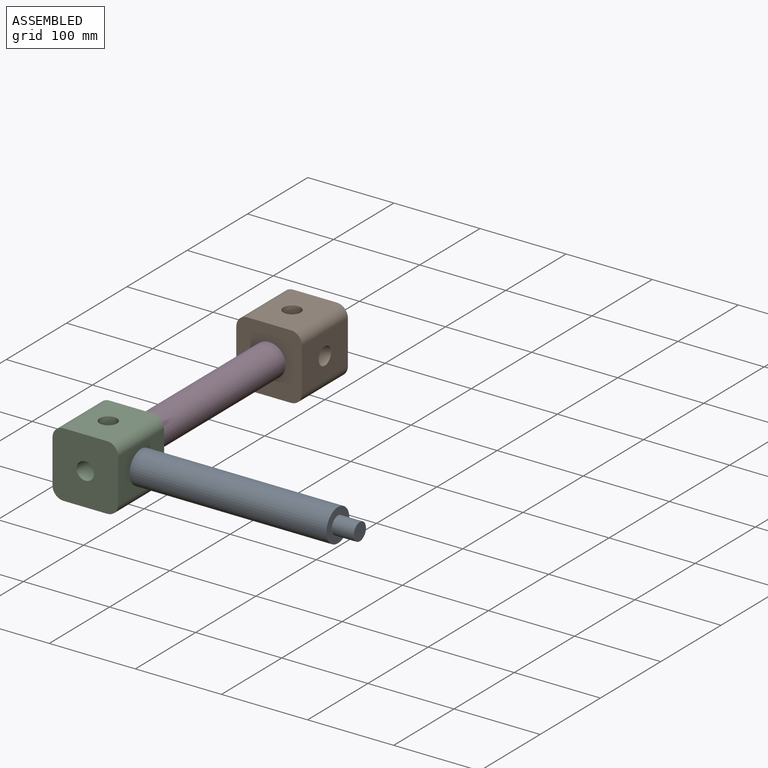
[diagram: assembled view]
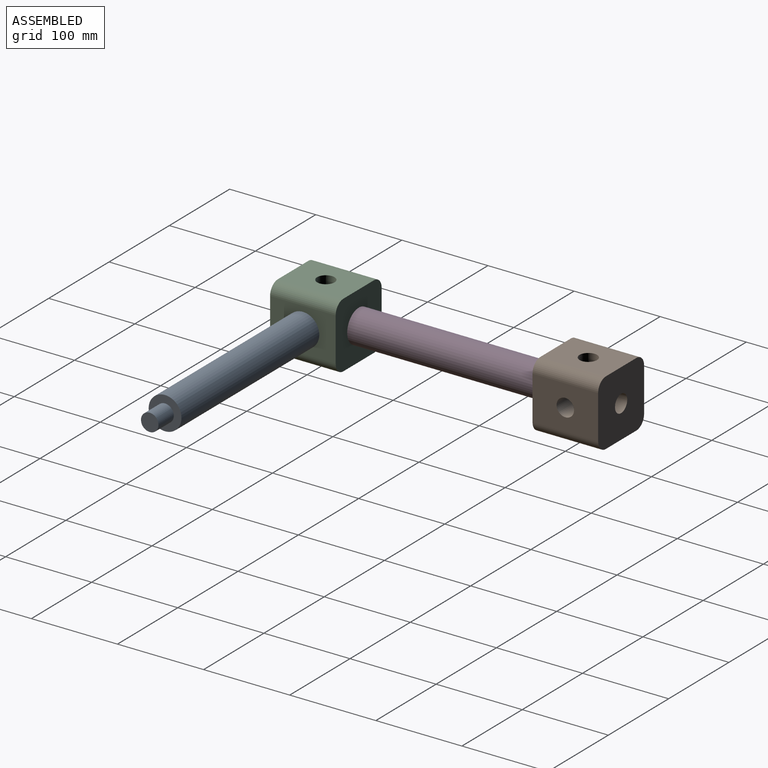
[diagram: assembled view, second angle]
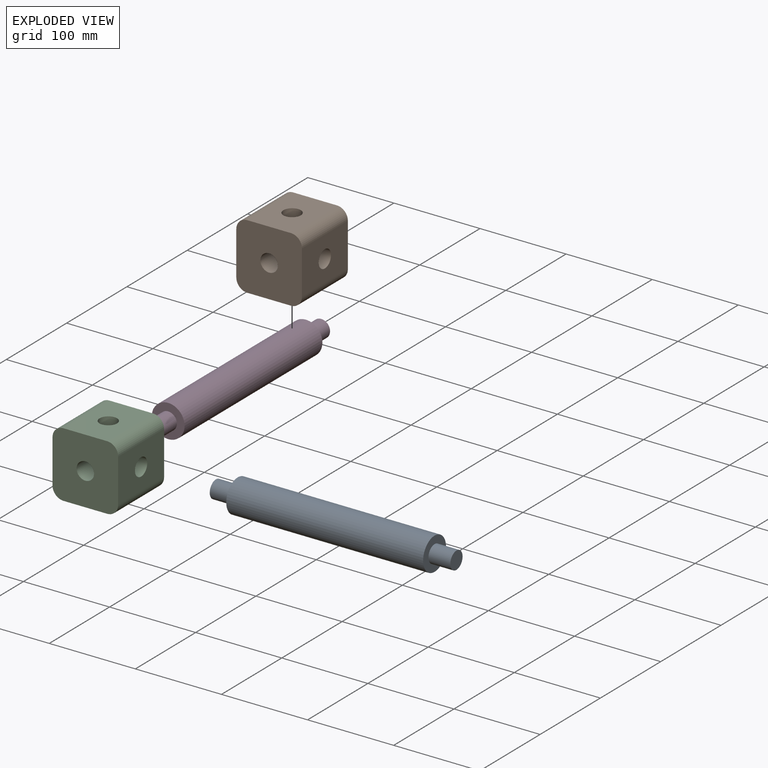
[diagram: exploded view]
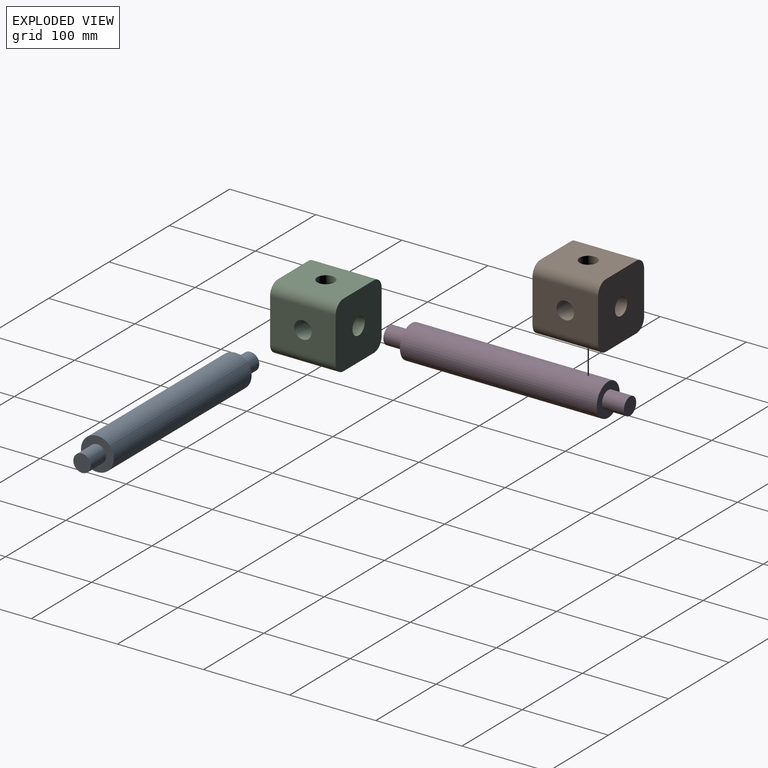
[diagram: exploded view, second angle]
ASSEMBLY  parts=4 mates=3
PART A: 7 faces, bbox 38.1x279.4x38.1 mm
  f0: cylinder r=10.16mm len=25.4mm, axis (0,1,0), area 1621.5mm2, adj f1,f4
  f1: plane 20.32x20.32mm, normal (0,1,0), area 324.3mm2, adj f0
  f2: cylinder r=19.05mm len=228.6mm, axis (0,1,0), area 27362.2mm2, adj f3,f4
  f3: plane 38.1x38.1mm, normal (0,-1,0), area 815.8mm2, adj f2,f5
  f4: plane 38.1x38.1mm, normal (0,1,0), area 815.8mm2, adj f0,f2
  f5: cylinder r=10.16mm len=25.4mm, axis (0,1,0), area 1621.5mm2, adj f3,f6
  f6: plane 20.32x20.32mm, normal (0,-1,0), area 324.3mm2, adj f5
PART B: 16 faces, bbox 76.2x76.2x76.2 mm
  f0: cylinder r=10.16mm len=30.92mm, axis (0,-1,0), area 1848.3mm2, adj f5,f12,f13,f14,f15
  f1: plane 76.2x50.8mm, normal (1,0,0), area 3546.7mm2, adj f5,f6,f7,f10,f12
  f2: plane 76.2x50.8mm, normal (0,0,1), area 3546.7mm2, adj f5,f6,f7,f8,f15
  f3: plane 76.2x50.8mm, normal (-1,0,0), area 3546.7mm2, adj f5,f6,f8,f9,f13
  f4: plane 76.2x50.8mm, normal (0,0,-1), area 3546.7mm2, adj f5,f6,f9,f10,f14
  f5: plane 76.2x76.2mm, normal (0,-1,0), area 5343.7mm2, adj f0,f1,f2,f3,f4,f7,f8,f9
  f6: plane 76.2x76.2mm, normal (0,1,0), area 5343.7mm2, adj f1,f2,f3,f4,f7,f8,f9,f10
  f7: cylinder r=12.7mm len=76.2mm, axis (0,1,0), area 1520.1mm2, adj f1,f2,f5,f6
  f8: cylinder r=12.7mm len=76.2mm, axis (0,-1,0), area 1520.1mm2, adj f2,f3,f5,f6
  f9: cylinder r=12.7mm len=76.2mm, axis (0,1,0), area 1520.1mm2, adj f3,f4,f5,f6
  f10: cylinder r=12.7mm len=76.2mm, axis (0,-1,0), area 1520.1mm2, adj f1,f4,f5,f6
  f11: cylinder r=10.16mm len=30.92mm, axis (0,-1,0), area 1848.3mm2, adj f6,f12,f13,f14,f15
  f12: cylinder r=10.16mm len=30.92mm, axis (1,0,0), area 1848.3mm2, adj f0,f1,f11,f14,f15
  f13: cylinder r=10.16mm len=30.92mm, axis (1,0,0), area 1848.3mm2, adj f0,f3,f11,f14,f15
  f14: cylinder r=10.16mm len=30.92mm, axis (0,0,1), area 1848.3mm2, adj f0,f4,f11,f12,f13
  f15: cylinder r=10.16mm len=30.92mm, axis (0,0,1), area 1848.3mm2, adj f0,f2,f11,f12,f13
PART C: same geometry as B
PART D: same geometry as A
PLACE A rot(axis=(0,0,-1),90deg) t=(254,-304.8,0)mm
PLACE B t=(0,38.1,-38.1)mm
PLACE C t=(0,-266.7,-38.1)mm
PLACE D t=(-38.1,-12.7,0)mm
MATE fastened D.f0 <-> B.f0  axis (0,1,0) through (-38.1,-38.1,0)mm
MATE fastened D.f0 <-> C.f0  axis (0,-1,0) through (-38.1,-266.7,0)mm
MATE fastened A.f0 <-> C.f12  axis (-1,0,0) through (0,-304.8,0)mm
